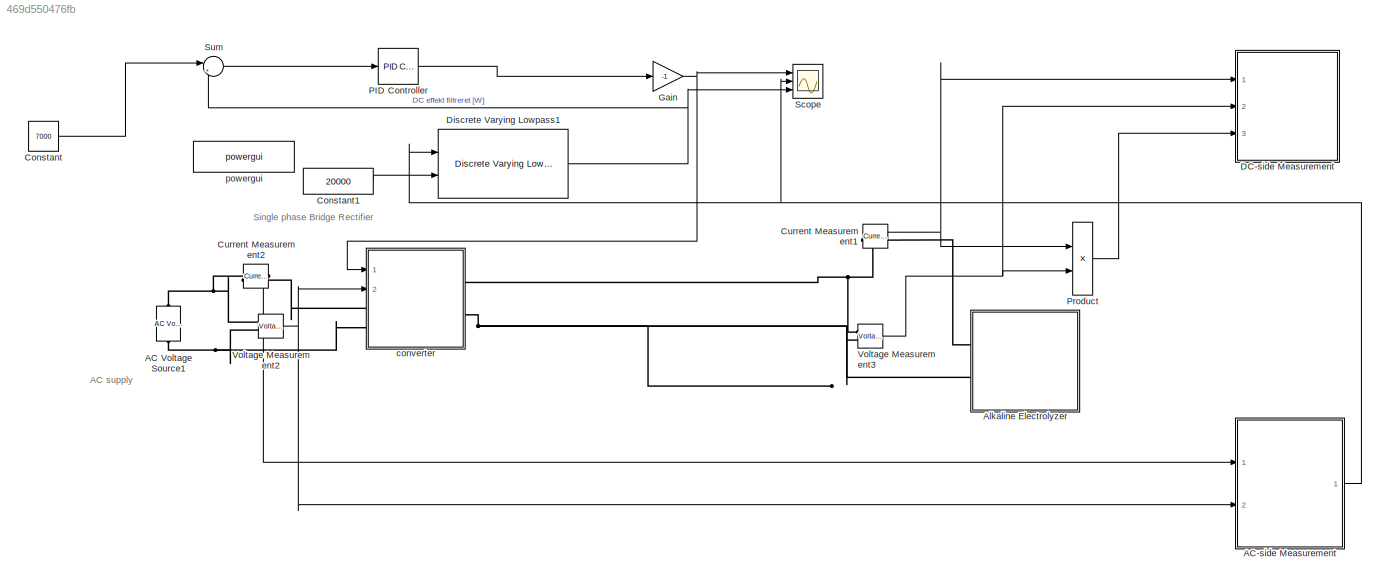
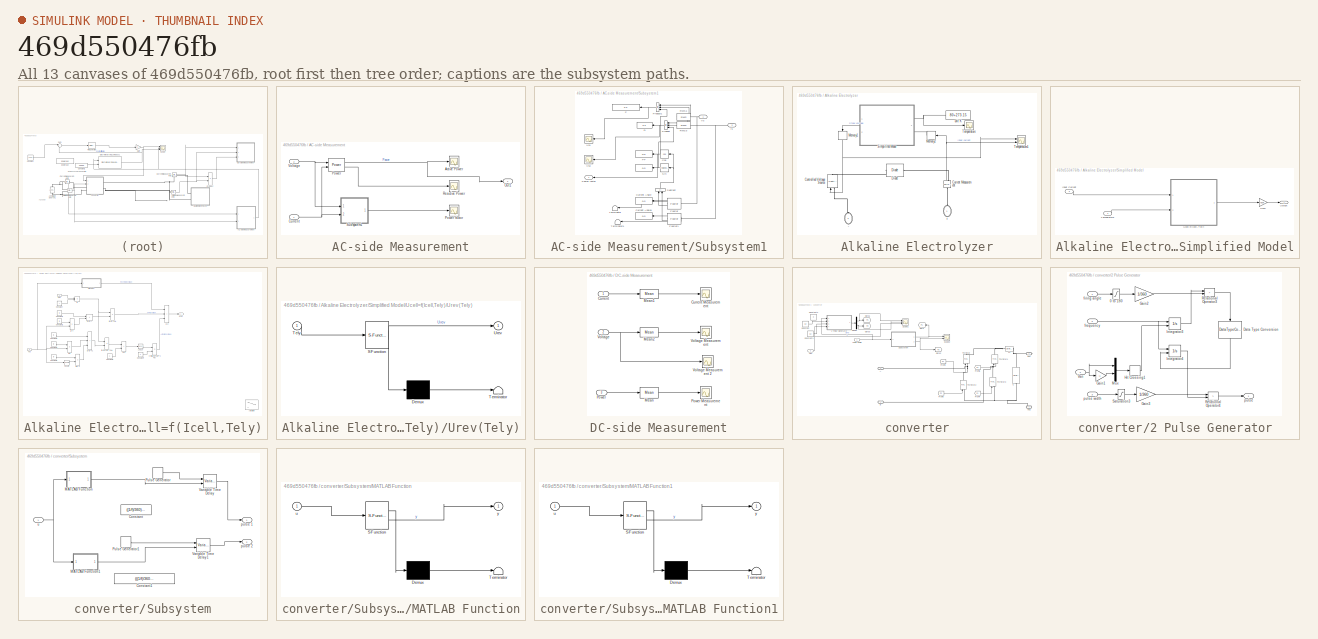
[diagram: thumbnail index - all 13 canvases of the model, root first then tree order]
MODEL slx_469d550476fb
KIND model
CONFIG AbsTol = 1e-3
CONFIG EnableMultiTasking = off
CONFIG FixedStep = Ts
CONFIG InitFcn = Ts=0.001;\n%%\nr1 = 8.05e-5;\nr2 = -2.5e-7;\ns = 0.185;\nt1 = 1.002;\nt2 = 8.424;\nt3 = 247.3;\nA = 0.25;%(m2)\nCt = 6000000/3600;%# Heat capacity of electrolyzer (Wh/K)\nCt1 = 46.7;%# Heat capacity of electrolyzer (Wh/K)\nRt = 0.018; % Heat resistance of electrolyzer(K/W)\nRt1 = 0.2; % Heat resistance of electrolyzer(K/W)\nNcell = 80; %   Number of cell each stack\nTmax = 273.15 + 80; % Max. stack temperature ...<+90ch>
CONFIG MaxStep = auto
CONFIG MinStep = auto
CONFIG RelTol = 1e-3
CONFIG SampleTimeConstraint = Unconstrained
CONFIG SolverName = VariableStepAuto
CONFIG StartTime = 0.0
CONFIG StopTime = 2
BLOCK [Reference] AC Voltage Source1  REF=powerlib/Electrical
Sources/AC Voltage Source
  NameLocation = right
  Ports = [0, 0, 0, 0, 0, 1, 1]
  SourceBlock = powerlib/Electrical\nSources/AC Voltage Source
  SourceProductBaseCode = PS
  SourceType = AC Voltage Source
BLOCK [SubSystem] AC-side Measurement
  Ports = [2, 1]
  RequestExecContextInheritance = off
BLOCK [Scope] AC-side Measurement/Active Power
  Floating = off
  NumInputPorts = 1
  Ports = [1]
  ScopeSpecificationString = Simulink.scopes.TimeScopeBlockCfg('CurrentConfiguration', extmgr.ConfigurationSet(extmgr.Configuration('Core','General UI',true),extmgr.Configuration('Core','Source UI',true),extmgr.Configuration('Sources','WiredSimulink',true,'DataLoggingVariableName','ScopeData6'),extmgr.Configuration('Visuals','Time Domain',true,'SerializedDisplays',{struct('MinYLimReal','-1061.38515','MaxYLimReal','9557.46639'...<+1507ch>
BLOCK [Inport] AC-side Measurement/Current
BLOCK [Outport] AC-side Measurement/Out1
  IconDisplay = Signal name
BLOCK [Reference] AC-side Measurement/Power  REF=powerlib_meascontrol/Measurements/Power
  Ports = [2, 2]
  SourceBlock = powerlib_meascontrol/Measurements/Power
  SourceProductBaseCode = PS
  SourceType = Power
BLOCK [Scope] AC-side Measurement/Power factor
  Floating = off
  NumInputPorts = 1
  Ports = [1]
  ScopeSpecificationString = Simulink.scopes.TimeScopeBlockCfg('CurrentConfiguration', extmgr.ConfigurationSet(extmgr.Configuration('Core','General UI',true),extmgr.Configuration('Core','Source UI',true),extmgr.Configuration('Sources','WiredSimulink',true,'DataLoggingVariableName','ScopeData5'),extmgr.Configuration('Visuals','Time Domain',true,'SerializedDisplays',{struct('MinYLimReal','-1.25','MaxYLimReal','1.25','YLabelReal...<+1472ch>
BLOCK [Scope] AC-side Measurement/Reactive Power
  Floating = off
  NumInputPorts = 1
  Ports = [1]
  ScopeSpecificationString = Simulink.scopes.TimeScopeBlockCfg('CurrentConfiguration', extmgr.ConfigurationSet(extmgr.Configuration('Core','General UI',true),extmgr.Configuration('Core','Source UI',true),extmgr.Configuration('Sources','WiredSimulink',true,'DataLoggingVariableName','ScopeData4'),extmgr.Configuration('Visuals','Time Domain',true,'SerializedDisplays',{struct('MinYLimReal','-1024.79238','MaxYLimReal','9223.1314',...<+1505ch>
BLOCK [SubSystem] AC-side Measurement/Subsystem1
  Ports = [2, 1]
  RequestExecContextInheritance = off
BLOCK [Display] AC-side Measurement/Subsystem1/  
  Decimation = 1
  NameLocation = top
  Ports = [1]
BLOCK [Trigonometry] AC-side Measurement/Subsystem1/Cos
  NameLocation = top
  Operator = cos
  Ports = [1, 1]
BLOCK [Display] AC-side Measurement/Subsystem1/Current Angle
  Decimation = 1
  NameLocation = top
  Ports = [1]
BLOCK [Display] AC-side Measurement/Subsystem1/Current Angle1
  Decimation = 1
  NameLocation = top
  Ports = [1]
BLOCK [Reference] AC-side Measurement/Subsystem1/Fourier  REF=powerlib_meascontrol/Measurements/Fourier
  NameLocation = top
  Ports = [1, 2]
  SourceBlock = powerlib_meascontrol/Measurements/Fourier
  SourceProductBaseCode = PS
  SourceType = Fourier
BLOCK [Reference] AC-side Measurement/Subsystem1/Fourier1  REF=powerlib_meascontrol/Measurements/Fourier
  Ports = [1, 2]
  SourceBlock = powerlib_meascontrol/Measurements/Fourier
  SourceProductBaseCode = PS
  SourceType = Fourier
BLOCK [Inport] AC-side Measurement/Subsystem1/Is
  Port = 2
BLOCK [Display] AC-side Measurement/Subsystem1/P
  Decimation = 1
  Ports = [1]
BLOCK [Display] AC-side Measurement/Subsystem1/PF
  Decimation = 1
  NameLocation = top
  Ports = [1]
BLOCK [Outport] AC-side Measurement/Subsystem1/Power factor
  NameLocation = top
BLOCK [Product] AC-side Measurement/Subsystem1/Product
  Inputs = 3
  NameLocation = top
  Ports = [3, 1]
BLOCK [Product] AC-side Measurement/Subsystem1/Product1
  Inputs = 3
  NameLocation = top
  Ports = [3, 1]
BLOCK [Display] AC-side Measurement/Subsystem1/Q
  Decimation = 1
  Ports = [1]
BLOCK [Reference] AC-side Measurement/Subsystem1/RMS1  REF=powerlib_meascontrol/Measurements/RMS
  NameLocation = top
  Ports = [1, 1]
  SourceBlock = powerlib_meascontrol/Measurements/RMS
  SourceProductBaseCode = PS
  SourceType = RMS
BLOCK [Reference] AC-side Measurement/Subsystem1/RMS3  REF=powerlib_meascontrol/Measurements/RMS
  Ports = [1, 1]
  SourceBlock = powerlib_meascontrol/Measurements/RMS
  SourceProductBaseCode = PS
  SourceType = RMS
BLOCK [Trigonometry] AC-side Measurement/Subsystem1/Sin
  Ports = [1, 1]
BLOCK [Sum] AC-side Measurement/Subsystem1/Subtract
  IconShape = rectangular
  Inputs = +-
  NameLocation = right
  Ports = [2, 1]
BLOCK [Terminator] AC-side Measurement/Subsystem1/Terminator
  NameLocation = top
BLOCK [Terminator] AC-side Measurement/Subsystem1/Terminator1
  NameLocation = top
BLOCK [Inport] AC-side Measurement/Subsystem1/Vs
BLOCK [Scope] AC-side Measurement/Subsystem1/Vs1
  Floating = off
  NameLocation = top
  NumInputPorts = 1
  Ports = [1]
  ScopeSpecificationString = Simulink.scopes.TimeScopeBlockCfg('CurrentConfiguration', extmgr.ConfigurationSet(extmgr.Configuration('Core','General UI',true),extmgr.Configuration('Core','Source UI',true),extmgr.Configuration('Sources','WiredSimulink',true,'DataLoggingVariableName','ScopeData3','DataLoggingSaveFormat','StructureWithTime','DataLogging',true),extmgr.Configuration('Visuals','Time Domain',true,'SerializedDisplays'...<+1544ch>
BLOCK [Scope] AC-side Measurement/Subsystem1/Vs3
  Floating = off
  NameLocation = top
  NumInputPorts = 1
  Ports = [1]
  ScopeSpecificationString = Simulink.scopes.TimeScopeBlockCfg('CurrentConfiguration', extmgr.ConfigurationSet(extmgr.Configuration('Core','General UI',true),extmgr.Configuration('Core','Source UI',true),extmgr.Configuration('Sources','WiredSimulink',true,'DataLoggingVariableName','ScopeData4','DataLoggingSaveFormat','StructureWithTime','DataLogging',true),extmgr.Configuration('Visuals','Time Domain',true,'SerializedDisplays'...<+1543ch>
BLOCK [Inport] AC-side Measurement/Voltage
  Port = 2
BLOCK [SubSystem] Alkaline Electrolyzer
  Ports = [0, 0, 0, 0, 0, 2]
  RequestExecContextInheritance = off
BLOCK [PMIOPort] Alkaline Electrolyzer/+
  NameLocation = right
  Side = Left
  Tag = PMCPort
BLOCK [PMIOPort] Alkaline Electrolyzer/-
  NameLocation = right
  Port = 2
  Side = Left
  Tag = PMCPort
BLOCK [Reference] Alkaline Electrolyzer/Controlled Voltage Source  REF=powerlib/Electrical
Sources/Controlled Voltage Source
  NameLocation = right
  Ports = [1, 0, 0, 0, 0, 1, 1]
  SourceBlock = powerlib/Electrical\nSources/Controlled Voltage Source
  SourceProductBaseCode = PS
  SourceType = Controlled Voltage Source
BLOCK [Reference] Alkaline Electrolyzer/Current Measurement  REF=powerlib/Measurements/Current Measurement
  NameLocation = right
  Ports = [0, 1, 0, 0, 0, 1, 1]
  SourceBlock = powerlib/Measurements/Current Measurement
  SourceProductBaseCode = PS
  SourceType = Current Measurement
  UserDataPersistent = on
BLOCK [Reference] Alkaline Electrolyzer/Diode  REF=powerlib/Power
Electronics/Diode
  NameLocation = top
  Ports = [0, 0, 0, 0, 0, 1, 1]
  SourceBlock = powerlib/Power\nElectronics/Diode
  SourceProductBaseCode = PS
  SourceType = Diode
BLOCK [Memory] Alkaline Electrolyzer/Memory1
  InitialCondition = 6
  NameLocation = right
BLOCK [Memory] Alkaline Electrolyzer/Memory2
  InitialCondition = 6
BLOCK [SubSystem] Alkaline Electrolyzer/Simplified Model
  PortSchema = {"entries":[{"content":{"sides":[{"content":{"connectorIds":["Out1"]},"type":"ConnectorPlacement.EquallySpacedRectSide","uuid":"5f83ef6f-0589-482a-9b32-d20637e9aaa8"},{"content":{"connectorIds":["In1","In2"],"side":"RIGHT"},"type":"ConnectorPlacement.EquallySpacedRectSide","uuid":"bd19202e-8fd7-4998-8624-3fadad929c5b"},{"content":{"connectorIds":[],"side":"TOP"},"type":"ConnectorPlacement.EquallyS...<+248ch>
  Ports = [2, 1]
  RequestExecContextInheritance = off
BLOCK [Inport] Alkaline Electrolyzer/Simplified Model/Input Current
  Port = 2
BLOCK [Gain] Alkaline Electrolyzer/Simplified Model/Ncell
  Gain = Ncell
BLOCK [Inport] Alkaline Electrolyzer/Simplified Model/Temperature
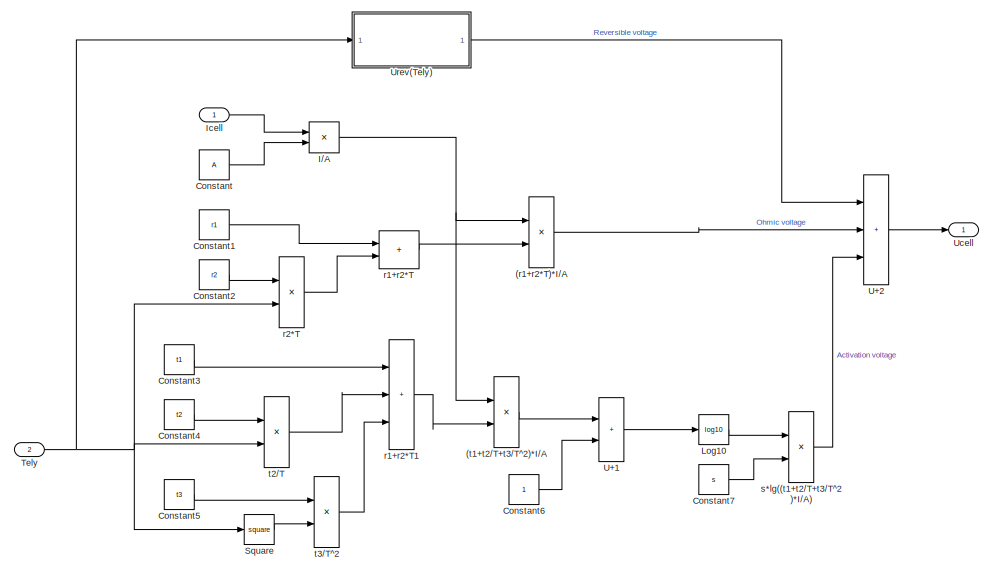
[diagram: Alkaline Electrolyzer/Simplified Model/Ucell=f(Icell,Tely) - part 1/2, central region]
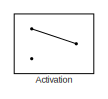
[diagram: Alkaline Electrolyzer/Simplified Model/Ucell=f(Icell,Tely) - part 2/2, bottom right region]
BLOCK [SubSystem] Alkaline Electrolyzer/Simplified Model/Ucell=f(Icell,Tely)
  Ports = [2, 1]
  RequestExecContextInheritance = off
BLOCK [Product] Alkaline Electrolyzer/Simplified Model/Ucell=f(Icell,Tely)/(r1+r2*T)*I//A
  Ports = [2, 1]
BLOCK [Product] Alkaline Electrolyzer/Simplified Model/Ucell=f(Icell,Tely)/(t1+t2//T+t3//T^2)*I//A
  Ports = [2, 1]
BLOCK [Switch] Alkaline Electrolyzer/Simplified Model/Ucell=f(Icell,Tely)/Activation
  Commented = on
  Criteria = u2 > Threshold
  InputSameDT = off
  SaturateOnIntegerOverflow = off
BLOCK [Constant] Alkaline Electrolyzer/Simplified Model/Ucell=f(Icell,Tely)/Constant
  Value = A
BLOCK [Constant] Alkaline Electrolyzer/Simplified Model/Ucell=f(Icell,Tely)/Constant1
  Value = r1
BLOCK [Constant] Alkaline Electrolyzer/Simplified Model/Ucell=f(Icell,Tely)/Constant2
  Value = r2
BLOCK [Constant] Alkaline Electrolyzer/Simplified Model/Ucell=f(Icell,Tely)/Constant3
  Value = t1
BLOCK [Constant] Alkaline Electrolyzer/Simplified Model/Ucell=f(Icell,Tely)/Constant4
  Value = t2
BLOCK [Constant] Alkaline Electrolyzer/Simplified Model/Ucell=f(Icell,Tely)/Constant5
  Value = t3
BLOCK [Constant] Alkaline Electrolyzer/Simplified Model/Ucell=f(Icell,Tely)/Constant6
BLOCK [Constant] Alkaline Electrolyzer/Simplified Model/Ucell=f(Icell,Tely)/Constant7
  Value = s
BLOCK [Product] Alkaline Electrolyzer/Simplified Model/Ucell=f(Icell,Tely)/I//A
  Inputs = */
  Ports = [2, 1]
BLOCK [Inport] Alkaline Electrolyzer/Simplified Model/Ucell=f(Icell,Tely)/Icell
BLOCK [Math] Alkaline Electrolyzer/Simplified Model/Ucell=f(Icell,Tely)/Log10
  Operator = log10
  Ports = [1, 1]
  SignedPower = on
BLOCK [Math] Alkaline Electrolyzer/Simplified Model/Ucell=f(Icell,Tely)/Square
  Operator = square
  Ports = [1, 1]
  SignedPower = on
BLOCK [Inport] Alkaline Electrolyzer/Simplified Model/Ucell=f(Icell,Tely)/Tely
  Port = 2
BLOCK [Sum] Alkaline Electrolyzer/Simplified Model/Ucell=f(Icell,Tely)/U+1
  IconShape = rectangular
  Ports = [2, 1]
BLOCK [Sum] Alkaline Electrolyzer/Simplified Model/Ucell=f(Icell,Tely)/U+2
  IconShape = rectangular
  Inputs = +++
  Ports = [3, 1]
BLOCK [Outport] Alkaline Electrolyzer/Simplified Model/Ucell=f(Icell,Tely)/Ucell
BLOCK [SubSystem] Alkaline Electrolyzer/Simplified Model/Ucell=f(Icell,Tely)/Urev(Tely)
  ErrorFcn = Stateflow.Translate.translate
  PermitHierarchicalResolution = ExplicitOnly
  Ports = [1, 1]
  RequestExecContextInheritance = off
  SFBlockType = MATLAB Function
  TreatAsAtomicUnit = on
BLOCK [Demux] Alkaline Electrolyzer/Simplified Model/Ucell=f(Icell,Tely)/Urev(Tely)/ Demux 
  Outputs = 1
  Ports = [1, 1]
BLOCK [S-Function] Alkaline Electrolyzer/Simplified Model/Ucell=f(Icell,Tely)/Urev(Tely)/ SFunction 
  EnableBusSupport = on
  FunctionName = sf_sfun
  PortCounts = [1 2]
  Ports = [1, 2]
  SFcnIsStateOwnerBlock = off
  SFunctionDeploymentMode = off
  Tag = Stateflow S-Function 1
BLOCK [Terminator] Alkaline Electrolyzer/Simplified Model/Ucell=f(Icell,Tely)/Urev(Tely)/ Terminator 
BLOCK [Inport] Alkaline Electrolyzer/Simplified Model/Ucell=f(Icell,Tely)/Urev(Tely)/Tely
BLOCK [Outport] Alkaline Electrolyzer/Simplified Model/Ucell=f(Icell,Tely)/Urev(Tely)/Urev
BLOCK [Sum] Alkaline Electrolyzer/Simplified Model/Ucell=f(Icell,Tely)/r1+r2*T
  IconShape = rectangular
  Ports = [2, 1]
BLOCK [Sum] Alkaline Electrolyzer/Simplified Model/Ucell=f(Icell,Tely)/r1+r2*T1
  IconShape = rectangular
  Inputs = +++
  Ports = [3, 1]
BLOCK [Product] Alkaline Electrolyzer/Simplified Model/Ucell=f(Icell,Tely)/r2*T
  Ports = [2, 1]
BLOCK [Product] Alkaline Electrolyzer/Simplified Model/Ucell=f(Icell,Tely)/s*lg((t1+t2//T+t3//T^2)*I//A)
  Ports = [2, 1]
BLOCK [Product] Alkaline Electrolyzer/Simplified Model/Ucell=f(Icell,Tely)/t2//T
  Inputs = */
  Ports = [2, 1]
BLOCK [Product] Alkaline Electrolyzer/Simplified Model/Ucell=f(Icell,Tely)/t3//T^2
  Inputs = */
  Ports = [2, 1]
BLOCK [Outport] Alkaline Electrolyzer/Simplified Model/Ustack
  VectorParamsAs1DForOutWhenUnconnected = off
BLOCK [Scope] Alkaline Electrolyzer/Temperature
  Floating = off
  NumInputPorts = 1
  Ports = [1]
  ScopeSpecificationString = Simulink.scopes.TimeScopeBlockCfg('CurrentConfiguration', extmgr.ConfigurationSet(extmgr.Configuration('Core','General UI',true),extmgr.Configuration('Core','Source UI',true),extmgr.Configuration('Sources','WiredSimulink',true,'DataLoggingVariableName','Temperature','DataLogging',true,'DataLoggingSaveFormat','StructureWithTime'),extmgr.Configuration('Visuals','Time Domain',true,'SerializedDisplays...<+1472ch>
BLOCK [Scope] Alkaline Electrolyzer/Temperature1
  Floating = off
  NumInputPorts = 2
  Ports = [2]
  ScopeSpecificationString = Simulink.scopes.TimeScopeBlockCfg('CurrentConfiguration', extmgr.ConfigurationSet(extmgr.Configuration('Core','General UI',true),extmgr.Configuration('Core','Source UI',true),extmgr.Configuration('Sources','WiredSimulink',true,'DataLoggingVariableName','Electro','DataLogging',true,'DataLoggingSaveFormat','StructureWithTime'),extmgr.Configuration('Visuals','Time Domain',true,'SerializedDisplays',{s...<+1505ch>
BLOCK [Constant] Alkaline Electrolyzer/unit K
  NameLocation = top
  SampleTime = -1
  Value = 80+273.15
BLOCK [Constant] Constant
  Value = 7000
BLOCK [Constant] Constant1
  Value = 20000
BLOCK [Reference] Current Measurement1  REF=powerlib/Measurements/Current Measurement
  Ports = [0, 1, 0, 0, 0, 1, 1]
  SourceBlock = powerlib/Measurements/Current Measurement
  SourceProductBaseCode = PS
  SourceType = Current Measurement
  UserDataPersistent = on
BLOCK [Reference] Current Measurement2  REF=powerlib/Measurements/Current Measurement
  Ports = [0, 1, 0, 0, 0, 1, 1]
  SourceBlock = powerlib/Measurements/Current Measurement
  SourceProductBaseCode = PS
  SourceType = Current Measurement
  UserDataPersistent = on
BLOCK [SubSystem] DC-side Measurement
  Ports = [3]
  RequestExecContextInheritance = off
BLOCK [Inport] DC-side Measurement/Current
BLOCK [Scope] DC-side Measurement/Current Measurement
  Floating = off
  NumInputPorts = 1
  Ports = [1]
  ScopeSpecificationString = Simulink.scopes.TimeScopeBlockCfg('CurrentConfiguration', extmgr.ConfigurationSet(extmgr.Configuration('Core','General UI',true),extmgr.Configuration('Core','Source UI',true),extmgr.Configuration('Sources','WiredSimulink',true,'DataLoggingVariableName','ElectroCurrent','DataLoggingSaveFormat','Array','DataLogging',true),extmgr.Configuration('Visuals','Time Domain',true,'SerializedDisplays',{struct...<+1550ch>
BLOCK [Reference] DC-side Measurement/Mean  REF=powerlib_meascontrol/Measurements/Mean
  Ports = [1, 1]
  SourceBlock = powerlib_meascontrol/Measurements/Mean
  SourceProductBaseCode = PS
  SourceType = Mean
BLOCK [Reference] DC-side Measurement/Mean1  REF=powerlib_meascontrol/Measurements/Mean
  Ports = [1, 1]
  SourceBlock = powerlib_meascontrol/Measurements/Mean
  SourceProductBaseCode = PS
  SourceType = Mean
BLOCK [Reference] DC-side Measurement/Mean2  REF=powerlib_meascontrol/Measurements/Mean
  Ports = [1, 1]
  SourceBlock = powerlib_meascontrol/Measurements/Mean
  SourceProductBaseCode = PS
  SourceType = Mean
BLOCK [Inport] DC-side Measurement/Power
  Port = 3
BLOCK [Scope] DC-side Measurement/Power Measurement
  Floating = off
  NumInputPorts = 1
  Ports = [1]
  ScopeSpecificationString = Simulink.scopes.TimeScopeBlockCfg('CurrentConfiguration', extmgr.ConfigurationSet(extmgr.Configuration('Core','General UI',true),extmgr.Configuration('Core','Source UI',true),extmgr.Configuration('Sources','WiredSimulink',true,'DataLoggingVariableName','ScopeData3','DataLoggingSaveFormat','Array'),extmgr.Configuration('Visuals','Time Domain',true,'SerializedDisplays',{struct('MinYLimReal','-3279.0...<+1542ch>
BLOCK [Inport] DC-side Measurement/Voltage
  Port = 2
BLOCK [Scope] DC-side Measurement/Voltage Measurement
  Floating = off
  NumInputPorts = 1
  Ports = [1]
  ScopeSpecificationString = Simulink.scopes.TimeScopeBlockCfg('CurrentConfiguration', extmgr.ConfigurationSet(extmgr.Configuration('Core','General UI',true),extmgr.Configuration('Core','Source UI',true),extmgr.Configuration('Sources','WiredSimulink',true,'DataLoggingVariableName','ElectroVoltage','DataLoggingSaveFormat','Array','DataLogging',true),extmgr.Configuration('Visuals','Time Domain',true,'SerializedDisplays',{struct...<+1552ch>
BLOCK [Scope] DC-side Measurement/Voltage Measurement 2
  Floating = off
  NumInputPorts = 1
  Ports = [1]
  ScopeSpecificationString = Simulink.scopes.TimeScopeBlockCfg('CurrentConfiguration', extmgr.ConfigurationSet(extmgr.Configuration('Core','General UI',true),extmgr.Configuration('Core','Source UI',true),extmgr.Configuration('Sources','WiredSimulink',true,'DataLoggingVariableName','ScopeData6','DataLoggingSaveFormat','Array'),extmgr.Configuration('Visuals','Time Domain',true,'SerializedDisplays',{struct('MinYLimReal','-17.220...<+1529ch>
BLOCK [Reference] Discrete Varying Lowpass1  REF=cstblocks/Linear Parameter Varying/Discrete Varying Lowpass
  Ports = [2, 1]
  SourceBlock = cstblocks/Linear Parameter Varying/Discrete Varying Lowpass
  SourceProductBaseCode = CT
  SourceType = Discrete Varying Lowpass
BLOCK [Gain] Gain
  Gain = -1
BLOCK [Reference] PID Controller  REF=pid_lib/PID Controller
  Ports = [1, 1]
  SourceBlock = pid_lib/PID Controller
  SourceProductBaseCode = SL
  SourceType = PID 1dof
BLOCK [Product] Product
  Ports = [2, 1]
BLOCK [Scope] Scope
  Floating = off
  NumInputPorts = 3
  Ports = [3]
  ScopeSpecificationString = Simulink.scopes.TimeScopeBlockCfg('CurrentConfiguration', extmgr.ConfigurationSet(extmgr.Configuration('Core','General UI',true),extmgr.Configuration('Core','Source UI',true),extmgr.Configuration('Sources','WiredSimulink',true,'DataLoggingVariableName','ScopeData1'),extmgr.Configuration('Visuals','Time Domain',true,'SerializedDisplays',{struct('MinYLimReal','40.76322','MaxYLimReal','195.47075','YL...<+2897ch>
BLOCK [Sum] Sum
  Inputs = |+-
  Ports = [2, 1]
BLOCK [Reference] Voltage Measurement2  REF=powerlib/Measurements/Voltage Measurement
  Ports = [0, 1, 0, 0, 0, 2]
  SourceBlock = powerlib/Measurements/Voltage Measurement
  SourceProductBaseCode = PS
  SourceType = Voltage Measurement
BLOCK [Reference] Voltage Measurement3  REF=powerlib/Measurements/Voltage Measurement
  Ports = [0, 1, 0, 0, 0, 2]
  SourceBlock = powerlib/Measurements/Voltage Measurement
  SourceProductBaseCode = PS
  SourceType = Voltage Measurement
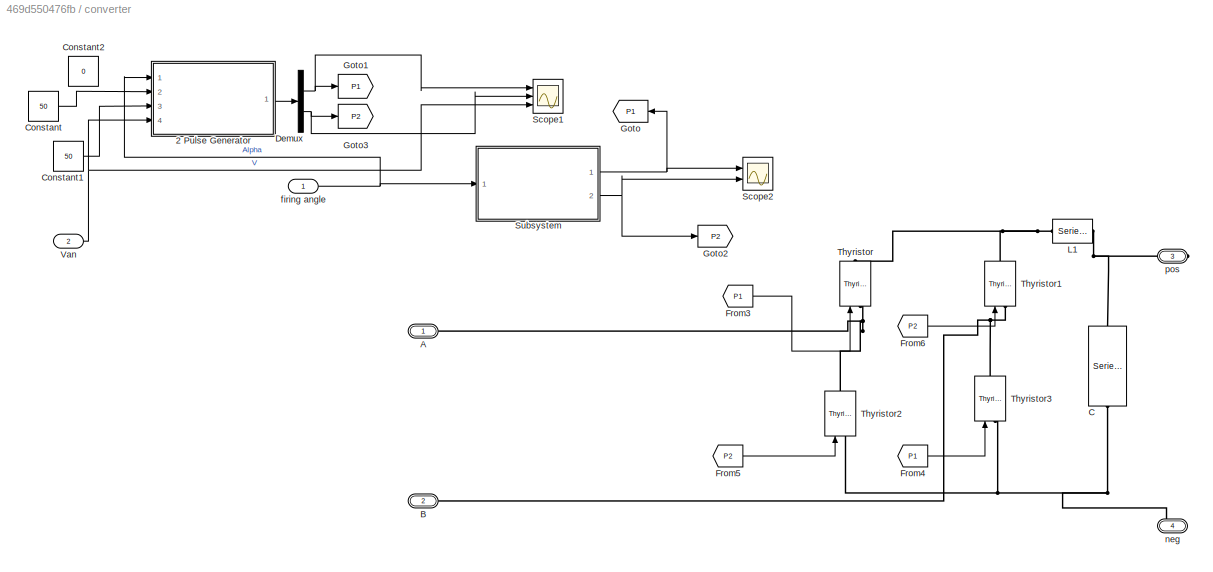
BLOCK [SubSystem] converter
  Ports = [2, 0, 0, 0, 0, 2, 2]
  RequestExecContextInheritance = off
BLOCK [SubSystem] converter/2 Pulse Generator
  Ports = [4, 1]
  RequestExecContextInheritance = off
BLOCK [Saturate] converter/2 Pulse Generator/0 to 180
  LowerLimit = 0
  UpperLimit = 180
BLOCK [DataTypeConversion] converter/2 Pulse Generator/Data Type Conversion
  NameLocation = left
  RndMeth = Floor
  SaturateOnIntegerOverflow = off
BLOCK [Gain] converter/2 Pulse Generator/Gain1
  Gain = -1
BLOCK [Gain] converter/2 Pulse Generator/Gain2
  Gain = 1/360
BLOCK [Gain] converter/2 Pulse Generator/Gain3
  Gain = 1/360
BLOCK [HitCross] converter/2 Pulse Generator/Hit Crossing1
  HitCrossingDirection = rising
  HitCrossingOffset = 0.001
  Ports = [1, 1]
BLOCK [Integrator] converter/2 Pulse Generator/Integrator3
  ExternalReset = rising
  NameLocation = top
  Ports = [2, 1]
BLOCK [Integrator] converter/2 Pulse Generator/Integrator4
  ExternalReset = rising
  NameLocation = top
  Ports = [2, 1]
BLOCK [Mux] converter/2 Pulse Generator/Mux
  DisplayOption = bar
  Inputs = 2
  Ports = [2, 1]
BLOCK [RelationalOperator] converter/2 Pulse Generator/Relational Operator3
  Operator = >
  Ports = [2, 1]
BLOCK [RelationalOperator] converter/2 Pulse Generator/Relational Operator4
  Operator = >
  Ports = [2, 1]
BLOCK [Saturate] converter/2 Pulse Generator/Saturation3
  LowerLimit = 0
  UpperLimit = 50
BLOCK [Inport] converter/2 Pulse Generator/Van
  Port = 4
BLOCK [Inport] converter/2 Pulse Generator/firing angle
BLOCK [Inport] converter/2 Pulse Generator/frequency
  Port = 2
BLOCK [Outport] converter/2 Pulse Generator/pulse
BLOCK [Inport] converter/2 Pulse Generator/pulse width
  Port = 3
BLOCK [PMIOPort] converter/A
  NameLocation = top
  Side = Left
BLOCK [PMIOPort] converter/B
  Port = 2
  Side = Left
BLOCK [Reference] converter/C  REF=powerlib/Elements/Series RLC Branch
  NameLocation = left
  Ports = [0, 0, 0, 0, 0, 1, 1]
  SourceBlock = powerlib/Elements/Series RLC Branch
  SourceProductBaseCode = PS
  SourceType = Series RLC Branch
BLOCK [Constant] converter/Constant
  Value = 50
BLOCK [Constant] converter/Constant1
  Value = 50
BLOCK [Constant] converter/Constant2
  Value = 0
BLOCK [Demux] converter/Demux
  Outputs = 2
  Ports = [1, 2]
BLOCK [From] converter/From3
  GotoTag = P1
BLOCK [From] converter/From4
  GotoTag = P1
BLOCK [From] converter/From5
  GotoTag = P2
BLOCK [From] converter/From6
  GotoTag = P2
BLOCK [Goto] converter/Goto
  Commented = on
  GotoTag = P1
  NameLocation = top
BLOCK [Goto] converter/Goto1
  GotoTag = P1
BLOCK [Goto] converter/Goto2
  Commented = on
  GotoTag = P2
BLOCK [Goto] converter/Goto3
  GotoTag = P2
BLOCK [Reference] converter/L1  REF=powerlib/Elements/Series RLC Branch
  NameLocation = top
  Ports = [0, 0, 0, 0, 0, 1, 1]
  SourceBlock = powerlib/Elements/Series RLC Branch
  SourceProductBaseCode = PS
  SourceType = Series RLC Branch
BLOCK [Scope] converter/Scope1
  Floating = off
  NumInputPorts = 3
  Ports = [3]
  ScopeSpecificationString = Simulink.scopes.TimeScopeBlockCfg('CurrentConfiguration', extmgr.ConfigurationSet(extmgr.Configuration('Core','General UI',true),extmgr.Configuration('Core','Source UI',true),extmgr.Configuration('Sources','WiredSimulink',true,'DataLogging',true,'DataLoggingVariableName','ScopeData2','DataLoggingSaveFormat','StructureWithTime','DataLoggingMaxPoints','5000000','SampleTime','5e-6','DataLoggingLimitD...<+3111ch>
BLOCK [Scope] converter/Scope2
  Commented = on
  Floating = off
  NumInputPorts = 2
  Ports = [2]
  ScopeSpecificationString = Simulink.scopes.TimeScopeBlockCfg('CurrentConfiguration', extmgr.ConfigurationSet(extmgr.Configuration('Core','General UI',true),extmgr.Configuration('Core','Source UI',true),extmgr.Configuration('Sources','WiredSimulink',true,'DataLogging',true,'DataLoggingVariableName','ScopeData1','DataLoggingSaveFormat','StructureWithTime','DataLoggingMaxPoints','5000000','SampleTime','5e-6','DataLoggingLimitD...<+2451ch>
BLOCK [SubSystem] converter/Subsystem
  Commented = on
  Ports = [1, 2]
  RequestExecContextInheritance = off
BLOCK [Constant] converter/Subsystem/Constant
  Commented = on
  Value = ((1/f)/360)*alpha
BLOCK [Constant] converter/Subsystem/Constant1
  Commented = on
  Value = (((1/f)/360)*alpha)+((1/f)/2)
BLOCK [SubSystem] converter/Subsystem/MATLAB Function
  ErrorFcn = Stateflow.Translate.translate
  PermitHierarchicalResolution = ExplicitOnly
  Ports = [1, 1]
  RequestExecContextInheritance = off
  SFBlockType = MATLAB Function
  TreatAsAtomicUnit = on
BLOCK [Demux] converter/Subsystem/MATLAB Function/ Demux 
  Outputs = 1
  Ports = [1, 1]
BLOCK [S-Function] converter/Subsystem/MATLAB Function/ SFunction 
  EnableBusSupport = on
  FunctionName = sf_sfun
  PortCounts = [1 2]
  Ports = [1, 2]
  SFcnIsStateOwnerBlock = off
  SFunctionDeploymentMode = off
  Tag = Stateflow S-Function 2
BLOCK [Terminator] converter/Subsystem/MATLAB Function/ Terminator 
BLOCK [Inport] converter/Subsystem/MATLAB Function/u
BLOCK [Outport] converter/Subsystem/MATLAB Function/y
BLOCK [SubSystem] converter/Subsystem/MATLAB Function1
  ErrorFcn = Stateflow.Translate.translate
  PermitHierarchicalResolution = ExplicitOnly
  Ports = [1, 1]
  RequestExecContextInheritance = off
  SFBlockType = MATLAB Function
  TreatAsAtomicUnit = on
BLOCK [Demux] converter/Subsystem/MATLAB Function1/ Demux 
  Outputs = 1
  Ports = [1, 1]
BLOCK [S-Function] converter/Subsystem/MATLAB Function1/ SFunction 
  EnableBusSupport = on
  FunctionName = sf_sfun
  PortCounts = [1 2]
  Ports = [1, 2]
  SFcnIsStateOwnerBlock = off
  SFunctionDeploymentMode = off
  Tag = Stateflow S-Function 3
BLOCK [Terminator] converter/Subsystem/MATLAB Function1/ Terminator 
BLOCK [Inport] converter/Subsystem/MATLAB Function1/u
BLOCK [Outport] converter/Subsystem/MATLAB Function1/y
BLOCK [DiscretePulseGenerator] converter/Subsystem/Pulse Generator
  Amplitude = Amp
  Period = 1/f
  Ports = [0, 1]
  PulseType = Time based
  PulseWidth = 50
BLOCK [DiscretePulseGenerator] converter/Subsystem/Pulse Generator1
  Amplitude = Amp
  Period = 1/f
  Ports = [0, 1]
  PulseType = Time based
  PulseWidth = 50
BLOCK [VariableTransportDelay] converter/Subsystem/Variable Time Delay
  MaximumDelay = 10
  Ports = [2, 1]
BLOCK [VariableTransportDelay] converter/Subsystem/Variable Time Delay1
  MaximumDelay = 10
  Ports = [2, 1]
BLOCK [Outport] converter/Subsystem/pulse 1
BLOCK [Outport] converter/Subsystem/pulse 2
  Port = 2
BLOCK [Inport] converter/Subsystem/u
BLOCK [Reference] converter/Thyristor  REF=powerlib/Power
Electronics/Thyristor
  NameLocation = right
  Ports = [1, 0, 0, 0, 0, 1, 1]
  SourceBlock = powerlib/Power\nElectronics/Thyristor
  SourceProductBaseCode = PS
  SourceType = Thyristor
BLOCK [Reference] converter/Thyristor1  REF=powerlib/Power
Electronics/Thyristor
  NameLocation = right
  Ports = [1, 0, 0, 0, 0, 1, 1]
  SourceBlock = powerlib/Power\nElectronics/Thyristor
  SourceProductBaseCode = PS
  SourceType = Thyristor
BLOCK [Reference] converter/Thyristor2  REF=powerlib/Power
Electronics/Thyristor
  NameLocation = right
  Ports = [1, 0, 0, 0, 0, 1, 1]
  SourceBlock = powerlib/Power\nElectronics/Thyristor
  SourceProductBaseCode = PS
  SourceType = Thyristor
BLOCK [Reference] converter/Thyristor3  REF=powerlib/Power
Electronics/Thyristor
  NameLocation = right
  Ports = [1, 0, 0, 0, 0, 1, 1]
  SourceBlock = powerlib/Power\nElectronics/Thyristor
  SourceProductBaseCode = PS
  SourceType = Thyristor
BLOCK [Inport] converter/Van
  IconDisplay = Signal name
  Port = 2
BLOCK [Inport] converter/firing angle
  IconDisplay = Signal name
BLOCK [PMIOPort] converter/neg
  Port = 4
  Side = Right
BLOCK [PMIOPort] converter/pos
  Port = 3
  Side = Right
BLOCK [Reference] powergui  REF=powerlib/powergui
  Ports = []
  Priority = 1
  SourceBlock = powerlib/powergui
  SourceProductBaseCode = PS
  SourceType = PSB option menu block
ANNOTATION (root): AC supply
ANNOTATION (root): Single phase Bridge Rectifier
NET AC-side Measurement/Current:1 -> AC-side Measurement/Power:2, AC-side Measurement/Subsystem1:2
NET AC-side Measurement/Power:1 -> AC-side Measurement/Active Power:1, AC-side Measurement/Out1:1
LINE AC-side Measurement/Power:2 -> AC-side Measurement/Reactive Power:1
NET AC-side Measurement/Subsystem1/Cos:1 -> AC-side Measurement/Subsystem1/PF:1, AC-side Measurement/Subsystem1/Power factor:1, AC-side Measurement/Subsystem1/Product1:3
LINE AC-side Measurement/Subsystem1/Fourier1:1 -> AC-side Measurement/Subsystem1/Terminator1:1
NET AC-side Measurement/Subsystem1/Fourier1:2 -> AC-side Measurement/Subsystem1/Current Angle1:1, AC-side Measurement/Subsystem1/Subtract:2
LINE AC-side Measurement/Subsystem1/Fourier:1 -> AC-side Measurement/Subsystem1/Terminator:1
NET AC-side Measurement/Subsystem1/Fourier:2 -> AC-side Measurement/Subsystem1/Current Angle:1, AC-side Measurement/Subsystem1/Subtract:1
NET AC-side Measurement/Subsystem1/Is:1 -> AC-side Measurement/Subsystem1/Fourier1:1, AC-side Measurement/Subsystem1/RMS3:1
NET AC-side Measurement/Subsystem1/Product1:1 -> AC-side Measurement/Subsystem1/P:1, AC-side Measurement/Subsystem1/Vs1:1
NET AC-side Measurement/Subsystem1/Product:1 -> AC-side Measurement/Subsystem1/Q:1, AC-side Measurement/Subsystem1/Vs3:1
NET AC-side Measurement/Subsystem1/RMS1:1 -> AC-side Measurement/Subsystem1/Product1:1, AC-side Measurement/Subsystem1/Product:1
NET AC-side Measurement/Subsystem1/RMS3:1 -> AC-side Measurement/Subsystem1/Product1:2, AC-side Measurement/Subsystem1/Product:2
NET AC-side Measurement/Subsystem1/Sin:1 -> AC-side Measurement/Subsystem1/  :1, AC-side Measurement/Subsystem1/Product:3
NET AC-side Measurement/Subsystem1/Subtract:1 -> AC-side Measurement/Subsystem1/Cos:1, AC-side Measurement/Subsystem1/Sin:1
NET AC-side Measurement/Subsystem1/Vs:1 -> AC-side Measurement/Subsystem1/Fourier:1, AC-side Measurement/Subsystem1/RMS1:1
LINE AC-side Measurement/Subsystem1:1 -> AC-side Measurement/Power factor:1
NET AC-side Measurement/Voltage:1 -> AC-side Measurement/Power:1, AC-side Measurement/Subsystem1:1
NET AC-side Measurement:1 -> Discrete Varying Lowpass1:1, Scope:2
NET Alkaline Electrolyzer/Current Measurement:1 -> Alkaline Electrolyzer/Memory2:1, Alkaline Electrolyzer/Temperature1:2
NET Alkaline Electrolyzer/Memory1:1 -> Alkaline Electrolyzer/Controlled Voltage Source:1, Alkaline Electrolyzer/Temperature1:1
LINE Alkaline Electrolyzer/Memory2:1 -> Alkaline Electrolyzer/Simplified Model:2
LINE Alkaline Electrolyzer/Simplified Model/Input Current:1 -> Alkaline Electrolyzer/Simplified Model/Ucell=f(Icell,Tely):1
LINE Alkaline Electrolyzer/Simplified Model/Ncell:1 -> Alkaline Electrolyzer/Simplified Model/Ustack:1
LINE Alkaline Electrolyzer/Simplified Model/Temperature:1 -> Alkaline Electrolyzer/Simplified Model/Ucell=f(Icell,Tely):2
LINE Alkaline Electrolyzer/Simplified Model/Ucell=f(Icell,Tely)/(r1+r2*T)*I//A:1 -> Alkaline Electrolyzer/Simplified Model/Ucell=f(Icell,Tely)/U+2:2
LINE Alkaline Electrolyzer/Simplified Model/Ucell=f(Icell,Tely)/(t1+t2//T+t3//T^2)*I//A:1 -> Alkaline Electrolyzer/Simplified Model/Ucell=f(Icell,Tely)/U+1:1
LINE Alkaline Electrolyzer/Simplified Model/Ucell=f(Icell,Tely)/Constant1:1 -> Alkaline Electrolyzer/Simplified Model/Ucell=f(Icell,Tely)/r1+r2*T:1
LINE Alkaline Electrolyzer/Simplified Model/Ucell=f(Icell,Tely)/Constant2:1 -> Alkaline Electrolyzer/Simplified Model/Ucell=f(Icell,Tely)/r2*T:1
LINE Alkaline Electrolyzer/Simplified Model/Ucell=f(Icell,Tely)/Constant3:1 -> Alkaline Electrolyzer/Simplified Model/Ucell=f(Icell,Tely)/r1+r2*T1:1
LINE Alkaline Electrolyzer/Simplified Model/Ucell=f(Icell,Tely)/Constant4:1 -> Alkaline Electrolyzer/Simplified Model/Ucell=f(Icell,Tely)/t2//T:1
LINE Alkaline Electrolyzer/Simplified Model/Ucell=f(Icell,Tely)/Constant5:1 -> Alkaline Electrolyzer/Simplified Model/Ucell=f(Icell,Tely)/t3//T^2:1
LINE Alkaline Electrolyzer/Simplified Model/Ucell=f(Icell,Tely)/Constant6:1 -> Alkaline Electrolyzer/Simplified Model/Ucell=f(Icell,Tely)/U+1:2
LINE Alkaline Electrolyzer/Simplified Model/Ucell=f(Icell,Tely)/Constant7:1 -> Alkaline Electrolyzer/Simplified Model/Ucell=f(Icell,Tely)/s*lg((t1+t2//T+t3//T^2)*I//A):2
LINE Alkaline Electrolyzer/Simplified Model/Ucell=f(Icell,Tely)/Constant:1 -> Alkaline Electrolyzer/Simplified Model/Ucell=f(Icell,Tely)/I//A:2
NET Alkaline Electrolyzer/Simplified Model/Ucell=f(Icell,Tely)/I//A:1 -> Alkaline Electrolyzer/Simplified Model/Ucell=f(Icell,Tely)/(r1+r2*T)*I//A:1, Alkaline Electrolyzer/Simplified Model/Ucell=f(Icell,Tely)/(t1+t2//T+t3//T^2)*I//A:1
LINE Alkaline Electrolyzer/Simplified Model/Ucell=f(Icell,Tely)/Icell:1 -> Alkaline Electrolyzer/Simplified Model/Ucell=f(Icell,Tely)/I//A:1
LINE Alkaline Electrolyzer/Simplified Model/Ucell=f(Icell,Tely)/Log10:1 -> Alkaline Electrolyzer/Simplified Model/Ucell=f(Icell,Tely)/s*lg((t1+t2//T+t3//T^2)*I//A):1
LINE Alkaline Electrolyzer/Simplified Model/Ucell=f(Icell,Tely)/Square:1 -> Alkaline Electrolyzer/Simplified Model/Ucell=f(Icell,Tely)/t3//T^2:2
NET Alkaline Electrolyzer/Simplified Model/Ucell=f(Icell,Tely)/Tely:1 -> Alkaline Electrolyzer/Simplified Model/Ucell=f(Icell,Tely)/Square:1, Alkaline Electrolyzer/Simplified Model/Ucell=f(Icell,Tely)/Urev(Tely):1, Alkaline Electrolyzer/Simplified Model/Ucell=f(Icell,Tely)/r2*T:2, Alkaline Electrolyzer/Simplified Model/Ucell=f(Icell,Tely)/t2//T:2
LINE Alkaline Electrolyzer/Simplified Model/Ucell=f(Icell,Tely)/U+1:1 -> Alkaline Electrolyzer/Simplified Model/Ucell=f(Icell,Tely)/Log10:1
LINE Alkaline Electrolyzer/Simplified Model/Ucell=f(Icell,Tely)/U+2:1 -> Alkaline Electrolyzer/Simplified Model/Ucell=f(Icell,Tely)/Ucell:1
LINE Alkaline Electrolyzer/Simplified Model/Ucell=f(Icell,Tely)/Urev(Tely):1 -> Alkaline Electrolyzer/Simplified Model/Ucell=f(Icell,Tely)/U+2:1
LINE Alkaline Electrolyzer/Simplified Model/Ucell=f(Icell,Tely)/r1+r2*T1:1 -> Alkaline Electrolyzer/Simplified Model/Ucell=f(Icell,Tely)/(t1+t2//T+t3//T^2)*I//A:2
LINE Alkaline Electrolyzer/Simplified Model/Ucell=f(Icell,Tely)/r1+r2*T:1 -> Alkaline Electrolyzer/Simplified Model/Ucell=f(Icell,Tely)/(r1+r2*T)*I//A:2
LINE Alkaline Electrolyzer/Simplified Model/Ucell=f(Icell,Tely)/r2*T:1 -> Alkaline Electrolyzer/Simplified Model/Ucell=f(Icell,Tely)/r1+r2*T:2
LINE Alkaline Electrolyzer/Simplified Model/Ucell=f(Icell,Tely)/s*lg((t1+t2//T+t3//T^2)*I//A):1 -> Alkaline Electrolyzer/Simplified Model/Ucell=f(Icell,Tely)/U+2:3
LINE Alkaline Electrolyzer/Simplified Model/Ucell=f(Icell,Tely)/t2//T:1 -> Alkaline Electrolyzer/Simplified Model/Ucell=f(Icell,Tely)/r1+r2*T1:2
LINE Alkaline Electrolyzer/Simplified Model/Ucell=f(Icell,Tely)/t3//T^2:1 -> Alkaline Electrolyzer/Simplified Model/Ucell=f(Icell,Tely)/r1+r2*T1:3
LINE Alkaline Electrolyzer/Simplified Model/Ucell=f(Icell,Tely):1 -> Alkaline Electrolyzer/Simplified Model/Ncell:1
LINE Alkaline Electrolyzer/Simplified Model:1 -> Alkaline Electrolyzer/Memory1:1
NET Alkaline Electrolyzer/unit K:1 -> Alkaline Electrolyzer/Simplified Model:1, Alkaline Electrolyzer/Temperature:1
LINE Constant1:1 -> Discrete Varying Lowpass1:2
LINE Constant:1 -> Sum:1
NET Current Measurement1:1 -> DC-side Measurement:1, Product:1
LINE Current Measurement2:1 -> AC-side Measurement:1
LINE DC-side Measurement/Current:1 -> DC-side Measurement/Mean1:1
LINE DC-side Measurement/Mean1:1 -> DC-side Measurement/Current Measurement:1
LINE DC-side Measurement/Mean2:1 -> DC-side Measurement/Voltage Measurement:1
LINE DC-side Measurement/Mean:1 -> DC-side Measurement/Power Measurement:1
LINE DC-side Measurement/Power:1 -> DC-side Measurement/Mean:1
NET DC-side Measurement/Voltage:1 -> DC-side Measurement/Mean2:1, DC-side Measurement/Voltage Measurement 2:1
NET Discrete Varying Lowpass1:1 -> Scope:3, Sum:2
NET Gain:1 -> Scope:1, converter:1
LINE PID Controller:1 -> Gain:1
LINE Product:1 -> DC-side Measurement:3
LINE Sum:1 -> PID Controller:1
NET Voltage Measurement2:1 -> AC-side Measurement:2, converter:2
NET Voltage Measurement3:1 -> DC-side Measurement:2, Product:2
LINE converter/2 Pulse Generator/0 to 180:1 -> converter/2 Pulse Generator/Gain2:1
LINE converter/2 Pulse Generator/Data Type Conversion:1 -> converter/2 Pulse Generator/Integrator4:2
LINE converter/2 Pulse Generator/Gain1:1 -> converter/2 Pulse Generator/Mux:2
LINE converter/2 Pulse Generator/Gain2:1 -> converter/2 Pulse Generator/Relational Operator3:2
LINE converter/2 Pulse Generator/Gain3:1 -> converter/2 Pulse Generator/Relational Operator4:1
LINE converter/2 Pulse Generator/Hit Crossing1:1 -> converter/2 Pulse Generator/Integrator3:2
LINE converter/2 Pulse Generator/Integrator3:1 -> converter/2 Pulse Generator/Relational Operator3:1
LINE converter/2 Pulse Generator/Integrator4:1 -> converter/2 Pulse Generator/Relational Operator4:2
LINE converter/2 Pulse Generator/Mux:1 -> converter/2 Pulse Generator/Hit Crossing1:1
LINE converter/2 Pulse Generator/Relational Operator3:1 -> converter/2 Pulse Generator/Data Type Conversion:1
LINE converter/2 Pulse Generator/Relational Operator4:1 -> converter/2 Pulse Generator/pulse:1
LINE converter/2 Pulse Generator/Saturation3:1 -> converter/2 Pulse Generator/Gain3:1
NET converter/2 Pulse Generator/Van:1 -> converter/2 Pulse Generator/Gain1:1, converter/2 Pulse Generator/Mux:1
LINE converter/2 Pulse Generator/firing angle:1 -> converter/2 Pulse Generator/0 to 180:1
NET converter/2 Pulse Generator/frequency:1 -> converter/2 Pulse Generator/Integrator3:1, converter/2 Pulse Generator/Integrator4:1
LINE converter/2 Pulse Generator/pulse width:1 -> converter/2 Pulse Generator/Saturation3:1
LINE converter/2 Pulse Generator:1 -> converter/Demux:1
LINE converter/Constant1:1 -> converter/2 Pulse Generator:3
LINE converter/Constant:1 -> converter/2 Pulse Generator:2
NET converter/Demux:1 -> converter/Goto1:1, converter/Scope1:1
NET converter/Demux:2 -> converter/Goto3:1, converter/Scope1:2
LINE converter/From3:1 -> converter/Thyristor:1
LINE converter/From4:1 -> converter/Thyristor3:1
LINE converter/From5:1 -> converter/Thyristor2:1
LINE converter/From6:1 -> converter/Thyristor1:1
LINE converter/Subsystem/MATLAB Function1:1 -> converter/Subsystem/Variable Time Delay1:2
LINE converter/Subsystem/MATLAB Function:1 -> converter/Subsystem/Variable Time Delay:2
LINE converter/Subsystem/Pulse Generator1:1 -> converter/Subsystem/Variable Time Delay1:1
LINE converter/Subsystem/Pulse Generator:1 -> converter/Subsystem/Variable Time Delay:1
LINE converter/Subsystem/Variable Time Delay1:1 -> converter/Subsystem/pulse 2:1
LINE converter/Subsystem/Variable Time Delay:1 -> converter/Subsystem/pulse 1:1
NET converter/Subsystem/u:1 -> converter/Subsystem/MATLAB Function1:1, converter/Subsystem/MATLAB Function:1
NET converter/Subsystem:1 -> converter/Goto:1, converter/Scope2:1
NET converter/Subsystem:2 -> converter/Goto2:1, converter/Scope2:2
NET converter/Van:1 -> converter/2 Pulse Generator:4, converter/Scope1:3
NET converter/firing angle:1 -> converter/2 Pulse Generator:1, converter/Subsystem:1
PNET net1: AC Voltage Source1:LConn1 -- Voltage Measurement2:LConn2 -- converter:LConn2
PNET net2: AC Voltage Source1:RConn1 -- Current Measurement2:LConn1 -- Voltage Measurement2:LConn1
PLINE Alkaline Electrolyzer/+:RConn1 -- Alkaline Electrolyzer/Current Measurement:LConn1
PLINE Alkaline Electrolyzer/-:RConn1 -- Alkaline Electrolyzer/Controlled Voltage Source:LConn1
PLINE Alkaline Electrolyzer/Controlled Voltage Source:RConn1 -- Alkaline Electrolyzer/Diode:RConn1
PLINE Alkaline Electrolyzer/Current Measurement:RConn1 -- Alkaline Electrolyzer/Diode:LConn1
PLINE Alkaline Electrolyzer:LConn1 -- Current Measurement1:RConn1
PNET net3: Alkaline Electrolyzer:LConn2 -- Voltage Measurement3:LConn2 -- converter:RConn2
PNET net4: Current Measurement1:LConn1 -- Voltage Measurement3:LConn1 -- converter:RConn1
PLINE Current Measurement2:RConn1 -- converter:LConn1
PNET net5: converter/A:RConn1 -- converter/Thyristor2:RConn1 -- converter/Thyristor:LConn1
PNET net6: converter/B:RConn1 -- converter/Thyristor1:LConn1 -- converter/Thyristor3:RConn1
PNET net7: converter/C:LConn1 -- converter/L1:RConn1 -- converter/pos:RConn1
PNET net8: converter/C:RConn1 -- converter/Thyristor2:LConn1 -- converter/Thyristor3:LConn1 -- converter/neg:RConn1
PNET net9: converter/L1:LConn1 -- converter/Thyristor1:RConn1 -- converter/Thyristor:RConn1
note: NET lines group one-source signal fan-out (src -> all destinations, sorted); 1:1 wires keep LINE; PNET lines group multi-terminal physical nets as a canonical sorted terminal list (undirected conserving connections); 2-terminal nets keep the pairwise PLINE form
CHART converter/Subsystem/MATLAB Function states=1 transitions=1
  STATE_LABEL 'eML_blk_kernel()'
  STATE_LABEL 'SCRIPT:\nfunction y = fcn(u)\n\ny = ((1/50)/360)*u;\n'
CHART converter/Subsystem/MATLAB Function1 states=1 transitions=1
  STATE_LABEL 'eML_blk_kernel()'
  STATE_LABEL 'SCRIPT:\nfunction y = fcn(u)\n\ny = (((1/50)/360)*u)+((1/50)/2);\n'
CHART Alkaline Electrolyzer/Simplified Model/Ucell=f(Icell,Tely)/Urev(Tely) states=1 transitions=1
  STATE_LABEL 'eML_blk_kernel()'
  STATE_LABEL 'SCRIPT:\nfunction Urev = fcn(Tely)\nUrev_t = 1.5184 - 1.5421e-3*Tely + 9.256e-5*Tely*log(Tely) + 9.84e-8*Tely^2;\n\nUrev = Urev_t;\n'
CHART  states=0 transitions=0
CHART  states=0 transitions=0
CHART  states=0 transitions=0
